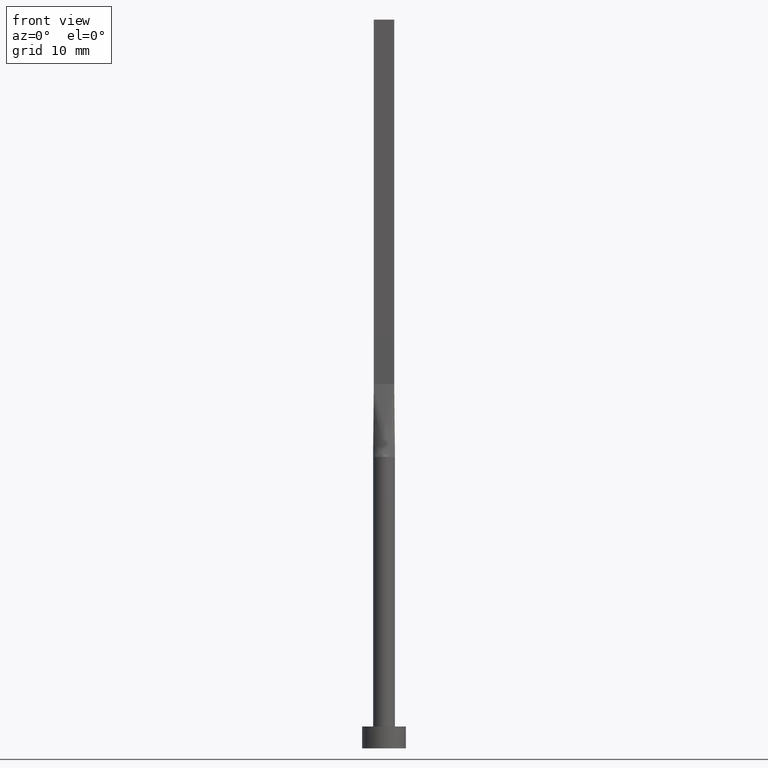
[diagram: clean part render]
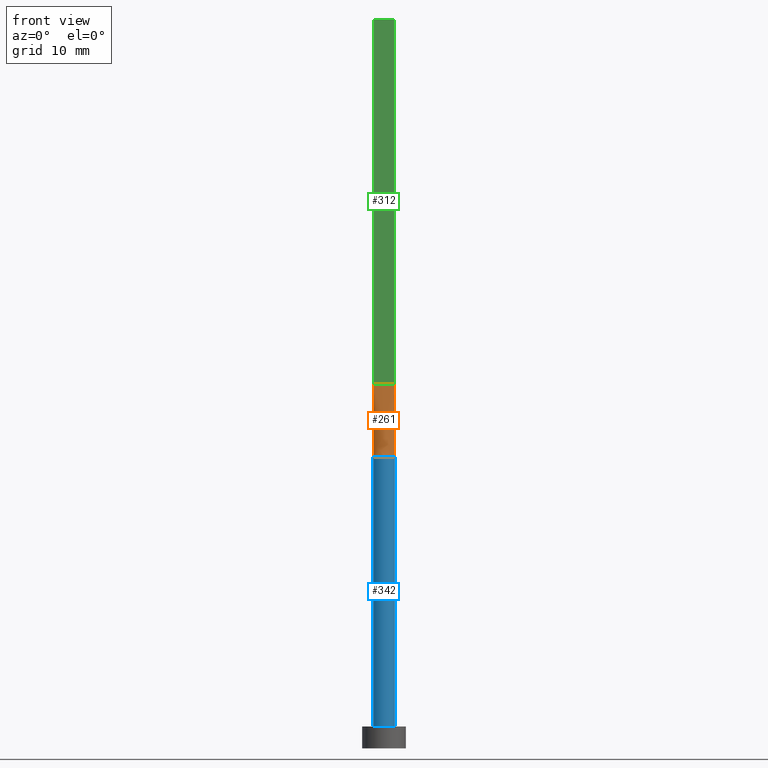
[diagram: same view with three faces highlighted in distinct colors, each labeled with its STEP entity id]
A machine part, front view with three faces highlighted in distinct colors.
Their STEP definitions:

[orange] entity #261 — the highlighted face is a freeform B-spline surface patch.
#7 = CARTESIAN_POINT ( 'NONE',  ( -0.2093118330951414807, -1.500000000000000666, 40.00000000000000000 ) ) ;
#12 = CARTESIAN_POINT ( 'NONE',  ( 0.5833333333333278192, -0.2499999999999996669, 50.00000000000000000 ) ) ;
#13 = CARTESIAN_POINT ( 'NONE',  ( -1.455009719257779111, -0.3848231641531742464, 39.99999999999999289 ) ) ;
#15 = CARTESIAN_POINT ( 'NONE',  ( 1.476641363262723106, -0.2636859577254864750, 40.00000000000000000 ) ) ;
#16 = CARTESIAN_POINT ( 'NONE',  ( 0.7852726932053983866, -1.293660568283137247, 40.00000000000000711 ) ) ;
#21 = CARTESIAN_POINT ( 'NONE',  ( -1.193588737715979731, -0.9257784320005619794, 40.00000000000000000 ) ) ;
#24 = CARTESIAN_POINT ( 'NONE',  ( -1.166666666666668517, -0.2499999999999996669, 50.00000000000000000 ) ) ;
#35 = B_SPLINE_SURFACE_WITH_KNOTS ( 'NONE', 3, 1, ( 
 ( #418, #421 ),
 ( #13, #164 ),
 ( #510, #24 ),
 ( #112, #554 ),
 ( #21, #61 ),
 ( #495, #420 ),
 ( #328, #197 ),
 ( #412, #330 ),
 ( #7, #369 ),
 ( #160, #277 ),
 ( #333, #101 ),
 ( #16, #546 ),
 ( #458, #12 ),
 ( #284, #454 ),
 ( #109, #234 ),
 ( #195, #238 ),
 ( #232, #378 ),
 ( #15, #286 ) ),
 .UNSPECIFIED., .F., .F., .F.,
 ( 4, 2, 2, 2, 2, 2, 2, 2, 4 ),
 ( 2, 2 ),
 ( 0.000000000000000000, 0.1250000000000000000, 0.2500000000000000000, 0.3750000000000000000, 0.5000000000000000000, 0.6250000000000000000, 0.7500000000000000000, 0.8750000000000000000, 1.000000000000000000 ),
 ( 0.000000000000000000, 1.000000000000000000 ),
 .UNSPECIFIED. ) ;
#50 = CARTESIAN_POINT ( 'NONE',  ( -1.476780214353118348, -0.2637106662004926605, 40.00000000000000000 ) ) ;
#61 = CARTESIAN_POINT ( 'NONE',  ( -0.8166666666666710928, -0.2499999999999996669, 50.00000000000000000 ) ) ;
#73 = VECTOR ( 'NONE', #391, 999.9999999999998863 ) ;
#81 = ORIENTED_EDGE ( 'NONE', *, *, #431, .T. ) ;
#82 = DIRECTION ( 'NONE',  ( -0.007663904067361680499, 0.001368554297743197626, 0.9999696953576046043 ) ) ;
#86 = VECTOR ( 'NONE', #82, 999.9999999999998863 ) ;
#92 = EDGE_CURVE ( 'NONE', #191, #539, #402, .T. ) ;
#101 = CARTESIAN_POINT ( 'NONE',  ( 0.2333333333333268145, -0.2499999999999996669, 50.00000000000000000 ) ) ;
#109 = CARTESIAN_POINT ( 'NONE',  ( 1.285860877433234961, -0.7868275653575079742, 40.00000000000000711 ) ) ;
#110 = CARTESIAN_POINT ( 'NONE',  ( 1.399999999999999911, -0.2499999999999997780, 50.00000000000000000 ) ) ;
#112 = CARTESIAN_POINT ( 'NONE',  ( -1.285860877433235405, -0.7868275653575071971, 40.00000000000000000 ) ) ;
#122 = CARTESIAN_POINT ( 'NONE',  ( -1.438320681631361619, -0.2568429788627425991, 45.00000000000000000 ) ) ;
#128 = LINE ( 'NONE', #122, #73 ) ;
#129 = VERTEX_POINT ( 'NONE', #446 ) ;
#138 = EDGE_CURVE ( 'NONE', #129, #539, #259, .T. ) ;
#147 = EDGE_LOOP ( 'NONE', ( #81, #186, #460, #416 ) ) ;
#150 = FACE_OUTER_BOUND ( 'NONE', #147, .T. ) ;
#160 = CARTESIAN_POINT ( 'NONE',  ( 0.2093118330951404815, -1.500000000000000444, 39.99999999999998579 ) ) ;
#164 = CARTESIAN_POINT ( 'NONE',  ( -1.283333333333334325, -0.2499999999999996669, 50.00000000000000000 ) ) ;
#172 = CARTESIAN_POINT ( 'NONE',  ( -1.399999999999999911, -0.2499999999999996392, 50.00000000000000000 ) ) ;
#182 = CARTESIAN_POINT ( 'NONE',  ( 1.438320681631361397, -0.2568429788627430987, 45.00000000000000000 ) ) ;
#186 = ORIENTED_EDGE ( 'NONE', *, *, #92, .T. ) ;
#191 = VERTEX_POINT ( 'NONE', #522 ) ;
#195 = CARTESIAN_POINT ( 'NONE',  ( 1.416287091352355532, -0.5163978007200231701, 40.00000000000001421 ) ) ;
#197 = CARTESIAN_POINT ( 'NONE',  ( -0.4666666666666726138, -0.2499999999999996669, 50.00000000000000711 ) ) ;
#198 = EDGE_CURVE ( 'NONE', #129, #335, #128, .T. ) ;
#232 = CARTESIAN_POINT ( 'NONE',  ( 1.455009719257778888, -0.3848231641531754121, 40.00000000000000000 ) ) ;
#234 = CARTESIAN_POINT ( 'NONE',  ( 0.9333333333333295734, -0.2499999999999997224, 50.00000000000000000 ) ) ;
#238 = CARTESIAN_POINT ( 'NONE',  ( 1.166666666666664298, -0.2499999999999997780, 50.00000000000000000 ) ) ;
#259 = LINE ( 'NONE', #172, #534 ) ;
#261 = ADVANCED_FACE ( 'NONE', ( #150 ), #35, .T. ) ;
#264 = CARTESIAN_POINT ( 'NONE',  ( 0.000000000000000000, 0.000000000000000000, 40.00000000000000000 ) ) ;
#277 = CARTESIAN_POINT ( 'NONE',  ( 0.1166666666666600211, -0.2499999999999996669, 50.00000000000000711 ) ) ;
#284 = CARTESIAN_POINT ( 'NONE',  ( 1.193588737715979509, -0.9257784320005624235, 39.99999999999998579 ) ) ;
#286 = CARTESIAN_POINT ( 'NONE',  ( 1.399999999999999911, -0.2499999999999997780, 50.00000000000000000 ) ) ;
#303 = DIRECTION ( 'NONE',  ( 0.000000000000000000, 0.000000000000000000, 1.000000000000000000 ) ) ;
#328 = CARTESIAN_POINT ( 'NONE',  ( -0.7852726932053994968, -1.293660568283136136, 40.00000000000000711 ) ) ;
#330 = CARTESIAN_POINT ( 'NONE',  ( -0.2333333333333398318, -0.2499999999999996669, 50.00000000000000711 ) ) ;
#333 = CARTESIAN_POINT ( 'NONE',  ( 0.4178861784692542991, -1.454504042781961548, 40.00000000000000711 ) ) ;
#335 = VERTEX_POINT ( 'NONE', #50 ) ;
#348 = DIRECTION ( 'NONE',  ( 1.000000000000000000, -5.808225924029488744E-17, 0.000000000000000000 ) ) ;
#369 = CARTESIAN_POINT ( 'NONE',  ( -0.1166666666666733021, -0.2499999999999996669, 50.00000000000000711 ) ) ;
#378 = CARTESIAN_POINT ( 'NONE',  ( 1.283333333333332105, -0.2499999999999997780, 50.00000000000000000 ) ) ;
#391 = DIRECTION ( 'NONE',  ( -0.007663904067361702183, -0.001368554297743126936, -0.9999696953576046043 ) ) ;
#402 = LINE ( 'NONE', #182, #86 ) ;
#412 = CARTESIAN_POINT ( 'NONE',  ( -0.4178861784692555759, -1.454504042781961548, 40.00000000000000711 ) ) ;
#416 = ORIENTED_EDGE ( 'NONE', *, *, #198, .T. ) ;
#418 = CARTESIAN_POINT ( 'NONE',  ( -1.476641363262723328, -0.2636859577254855869, 40.00000000000000000 ) ) ;
#420 = CARTESIAN_POINT ( 'NONE',  ( -0.5833333333333389215, -0.2499999999999996669, 50.00000000000000711 ) ) ;
#421 = CARTESIAN_POINT ( 'NONE',  ( -1.399999999999999911, -0.2499999999999996392, 50.00000000000000000 ) ) ;
#431 = EDGE_CURVE ( 'NONE', #335, #191, #459, .T. ) ;
#446 = CARTESIAN_POINT ( 'NONE',  ( -1.399999999999999911, -0.2499999999999996392, 50.00000000000000000 ) ) ;
#454 = CARTESIAN_POINT ( 'NONE',  ( 0.8166666666666622110, -0.2499999999999996669, 50.00000000000000000 ) ) ;
#458 = CARTESIAN_POINT ( 'NONE',  ( 0.9436169880431068968, -1.179536671679308535, 40.00000000000000000 ) ) ;
#459 = CIRCLE ( 'NONE', #488, 1.500000000000000222 ) ;
#460 = ORIENTED_EDGE ( 'NONE', *, *, #138, .F. ) ;
#488 = AXIS2_PLACEMENT_3D ( 'NONE', #264, #303, #565 ) ;
#495 = CARTESIAN_POINT ( 'NONE',  ( -0.9436169880431074519, -1.179536671679307647, 39.99999999999998579 ) ) ;
#510 = CARTESIAN_POINT ( 'NONE',  ( -1.416287091352355532, -0.5163978007200222820, 40.00000000000001421 ) ) ;
#522 = CARTESIAN_POINT ( 'NONE',  ( 1.476789766994309527, -0.2637122300648489515, 40.00000000000000000 ) ) ;
#534 = VECTOR ( 'NONE', #348, 1000.000000000000000 ) ;
#539 = VERTEX_POINT ( 'NONE', #110 ) ;
#546 = CARTESIAN_POINT ( 'NONE',  ( 0.4666666666666606789, -0.2499999999999996669, 50.00000000000000000 ) ) ;
#554 = CARTESIAN_POINT ( 'NONE',  ( -0.9333333333333369008, -0.2499999999999996669, 50.00000000000000000 ) ) ;
#565 = DIRECTION ( 'NONE',  ( 1.000000000000000000, 0.000000000000000000, 0.000000000000000000 ) ) ;

[blue] entity #342 — the highlighted cylindrical surface (edge-blend (fillet) strip) has radius 1.5 mm, axis along (-0, -0, -1).
#11 = EDGE_CURVE ( 'NONE', #354, #326, #384, .T. ) ;
#27 = CARTESIAN_POINT ( 'NONE',  ( 1.500000000000000222, 1.836970198721030181E-16, 40.00000000000000000 ) ) ;
#32 = DIRECTION ( 'NONE',  ( 1.000000000000000000, -7.105427357601001859E-15, 0.000000000000000000 ) ) ;
#43 = EDGE_CURVE ( 'NONE', #401, #326, #562, .T. ) ;
#50 = CARTESIAN_POINT ( 'NONE',  ( -1.476780214353118348, -0.2637106662004926605, 40.00000000000000000 ) ) ;
#54 = DIRECTION ( 'NONE',  ( -0.000000000000000000, -0.000000000000000000, -1.000000000000000000 ) ) ;
#65 = CIRCLE ( 'NONE', #381, 1.500000000000000222 ) ;
#69 = FACE_OUTER_BOUND ( 'NONE', #87, .T. ) ;
#87 = EDGE_LOOP ( 'NONE', ( #103, #497, #338, #262, #395, #148 ) ) ;
#103 = ORIENTED_EDGE ( 'NONE', *, *, #11, .F. ) ;
#121 = CARTESIAN_POINT ( 'NONE',  ( 0.000000000000000000, 0.000000000000000000, 40.00000000000000000 ) ) ;
#132 = DIRECTION ( 'NONE',  ( 1.000000000000000000, 0.000000000000000000, 0.000000000000000000 ) ) ;
#148 = ORIENTED_EDGE ( 'NONE', *, *, #43, .T. ) ;
#165 = CARTESIAN_POINT ( 'NONE',  ( 0.000000000000000000, 0.000000000000000000, 3.000000000000000000 ) ) ;
#169 = DIRECTION ( 'NONE',  ( 0.000000000000000000, 0.000000000000000000, 1.000000000000000000 ) ) ;
#176 = CARTESIAN_POINT ( 'NONE',  ( 1.499909062348296462, 3.515891419768138559E-16, 40.00000000000000000 ) ) ;
#191 = VERTEX_POINT ( 'NONE', #522 ) ;
#199 = CARTESIAN_POINT ( 'NONE',  ( -1.500000000000000222, 0.000000000000000000, 40.00000000000000000 ) ) ;
#211 = AXIS2_PLACEMENT_3D ( 'NONE', #121, #530, #215 ) ;
#212 = DIRECTION ( 'NONE',  ( 0.000000000000000000, 0.000000000000000000, 1.000000000000000000 ) ) ;
#215 = DIRECTION ( 'NONE',  ( -1.000000000000000000, 0.000000000000000000, 0.000000000000000000 ) ) ;
#223 = AXIS2_PLACEMENT_3D ( 'NONE', #249, #212, #132 ) ;
#249 = CARTESIAN_POINT ( 'NONE',  ( 0.000000000000000000, 0.000000000000000000, 40.00000000000000000 ) ) ;
#262 = ORIENTED_EDGE ( 'NONE', *, *, #365, .F. ) ;
#264 = CARTESIAN_POINT ( 'NONE',  ( 0.000000000000000000, 0.000000000000000000, 40.00000000000000000 ) ) ;
#303 = DIRECTION ( 'NONE',  ( 0.000000000000000000, 0.000000000000000000, 1.000000000000000000 ) ) ;
#304 = VERTEX_POINT ( 'NONE', #417 ) ;
#309 = EDGE_CURVE ( 'NONE', #304, #401, #324, .T. ) ;
#316 = AXIS2_PLACEMENT_3D ( 'NONE', #165, #437, #340 ) ;
#324 = LINE ( 'NONE', #199, #332 ) ;
#326 = VERTEX_POINT ( 'NONE', #555 ) ;
#332 = VECTOR ( 'NONE', #54, 1000.000000000000000 ) ;
#335 = VERTEX_POINT ( 'NONE', #50 ) ;
#338 = ORIENTED_EDGE ( 'NONE', *, *, #431, .F. ) ;
#340 = DIRECTION ( 'NONE',  ( 1.000000000000000000, 0.000000000000000000, 0.000000000000000000 ) ) ;
#342 = ADVANCED_FACE ( 'NONE', ( #69 ), #517, .T. ) ;
#354 = VERTEX_POINT ( 'NONE', #176 ) ;
#365 = EDGE_CURVE ( 'NONE', #304, #335, #479, .T. ) ;
#381 = AXIS2_PLACEMENT_3D ( 'NONE', #526, #169, #32 ) ;
#384 = LINE ( 'NONE', #27, #467 ) ;
#395 = ORIENTED_EDGE ( 'NONE', *, *, #309, .T. ) ;
#401 = VERTEX_POINT ( 'NONE', #439 ) ;
#417 = CARTESIAN_POINT ( 'NONE',  ( -1.499909062348296462, -1.026848616785427865E-15, 40.00000000000000000 ) ) ;
#429 = EDGE_CURVE ( 'NONE', #191, #354, #65, .T. ) ;
#431 = EDGE_CURVE ( 'NONE', #335, #191, #459, .T. ) ;
#437 = DIRECTION ( 'NONE',  ( 0.000000000000000000, 0.000000000000000000, 1.000000000000000000 ) ) ;
#439 = CARTESIAN_POINT ( 'NONE',  ( -1.500000000000000222, 0.000000000000000000, 3.000000000000000000 ) ) ;
#459 = CIRCLE ( 'NONE', #488, 1.500000000000000222 ) ;
#467 = VECTOR ( 'NONE', #571, 1000.000000000000000 ) ;
#479 = CIRCLE ( 'NONE', #223, 1.500000000000000222 ) ;
#488 = AXIS2_PLACEMENT_3D ( 'NONE', #264, #303, #565 ) ;
#497 = ORIENTED_EDGE ( 'NONE', *, *, #429, .F. ) ;
#517 = CYLINDRICAL_SURFACE ( 'NONE', #211, 1.500000000000000222 ) ;
#522 = CARTESIAN_POINT ( 'NONE',  ( 1.476789766994309527, -0.2637122300648489515, 40.00000000000000000 ) ) ;
#526 = CARTESIAN_POINT ( 'NONE',  ( 0.000000000000000000, 0.000000000000000000, 40.00000000000000000 ) ) ;
#530 = DIRECTION ( 'NONE',  ( -0.000000000000000000, -0.000000000000000000, -1.000000000000000000 ) ) ;
#555 = CARTESIAN_POINT ( 'NONE',  ( 1.500000000000000222, 1.836970198721030181E-16, 3.000000000000000000 ) ) ;
#562 = CIRCLE ( 'NONE', #316, 1.500000000000000222 ) ;
#565 = DIRECTION ( 'NONE',  ( 1.000000000000000000, 0.000000000000000000, 0.000000000000000000 ) ) ;
#571 = DIRECTION ( 'NONE',  ( -0.000000000000000000, -0.000000000000000000, -1.000000000000000000 ) ) ;

[green] entity #312 — the highlighted planar face has unit normal (0, 1, -0).
#3 = EDGE_CURVE ( 'NONE', #275, #220, #289, .T. ) ;
#59 = CARTESIAN_POINT ( 'NONE',  ( -1.399999999999999911, -0.2499999999999996392, 100.0000000000000000 ) ) ;
#70 = CARTESIAN_POINT ( 'NONE',  ( 1.399999999999999911, -0.2499999999999997780, 100.0000000000000000 ) ) ;
#110 = CARTESIAN_POINT ( 'NONE',  ( 1.399999999999999911, -0.2499999999999997780, 50.00000000000000000 ) ) ;
#126 = LINE ( 'NONE', #254, #177 ) ;
#129 = VERTEX_POINT ( 'NONE', #446 ) ;
#138 = EDGE_CURVE ( 'NONE', #129, #539, #259, .T. ) ;
#153 = CARTESIAN_POINT ( 'NONE',  ( -1.399999999999999911, -0.2499999999999996392, 100.0000000000000000 ) ) ;
#172 = CARTESIAN_POINT ( 'NONE',  ( -1.399999999999999911, -0.2499999999999996392, 50.00000000000000000 ) ) ;
#177 = VECTOR ( 'NONE', #484, 1000.000000000000000 ) ;
#180 = LINE ( 'NONE', #356, #524 ) ;
#220 = VERTEX_POINT ( 'NONE', #70 ) ;
#246 = CARTESIAN_POINT ( 'NONE',  ( -1.399999999999999911, -0.2499999999999996392, 100.0000000000000000 ) ) ;
#251 = ORIENTED_EDGE ( 'NONE', *, *, #414, .F. ) ;
#254 = CARTESIAN_POINT ( 'NONE',  ( 1.399999999999999911, -0.2499999999999997780, 100.0000000000000000 ) ) ;
#259 = LINE ( 'NONE', #172, #534 ) ;
#275 = VERTEX_POINT ( 'NONE', #59 ) ;
#282 = DIRECTION ( 'NONE',  ( -1.000000000000000000, 5.808225924029488744E-17, 0.000000000000000000 ) ) ;
#289 = LINE ( 'NONE', #246, #399 ) ;
#299 = ORIENTED_EDGE ( 'NONE', *, *, #138, .T. ) ;
#312 = ADVANCED_FACE ( 'NONE', ( #508 ), #375, .F. ) ;
#317 = ORIENTED_EDGE ( 'NONE', *, *, #3, .F. ) ;
#343 = DIRECTION ( 'NONE',  ( -0.000000000000000000, -0.000000000000000000, -1.000000000000000000 ) ) ;
#348 = DIRECTION ( 'NONE',  ( 1.000000000000000000, -5.808225924029488744E-17, 0.000000000000000000 ) ) ;
#356 = CARTESIAN_POINT ( 'NONE',  ( -1.399999999999999911, -0.2499999999999996392, 100.0000000000000000 ) ) ;
#361 = AXIS2_PLACEMENT_3D ( 'NONE', #153, #452, #282 ) ;
#375 = PLANE ( 'NONE',  #361 ) ;
#392 = DIRECTION ( 'NONE',  ( 1.000000000000000000, -5.808225924029488744E-17, 0.000000000000000000 ) ) ;
#399 = VECTOR ( 'NONE', #392, 1000.000000000000000 ) ;
#414 = EDGE_CURVE ( 'NONE', #220, #539, #126, .T. ) ;
#446 = CARTESIAN_POINT ( 'NONE',  ( -1.399999999999999911, -0.2499999999999996392, 50.00000000000000000 ) ) ;
#452 = DIRECTION ( 'NONE',  ( 5.808225924029488744E-17, 1.000000000000000000, -0.000000000000000000 ) ) ;
#471 = EDGE_CURVE ( 'NONE', #275, #129, #180, .T. ) ;
#484 = DIRECTION ( 'NONE',  ( -0.000000000000000000, -0.000000000000000000, -1.000000000000000000 ) ) ;
#485 = ORIENTED_EDGE ( 'NONE', *, *, #471, .T. ) ;
#508 = FACE_OUTER_BOUND ( 'NONE', #527, .T. ) ;
#524 = VECTOR ( 'NONE', #343, 1000.000000000000000 ) ;
#527 = EDGE_LOOP ( 'NONE', ( #299, #251, #317, #485 ) ) ;
#534 = VECTOR ( 'NONE', #348, 1000.000000000000000 ) ;
#539 = VERTEX_POINT ( 'NONE', #110 ) ;